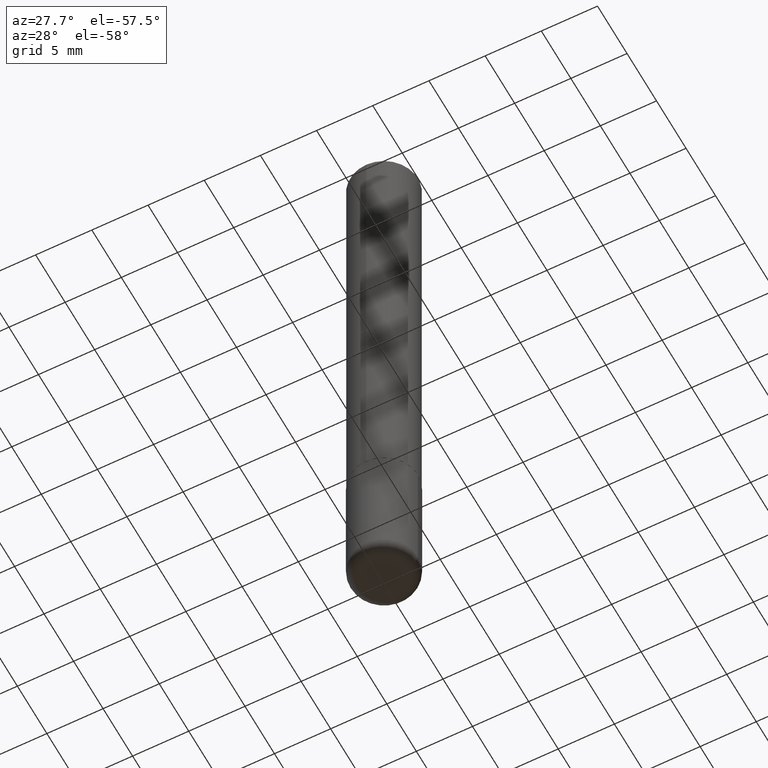
[diagram: clean part render]
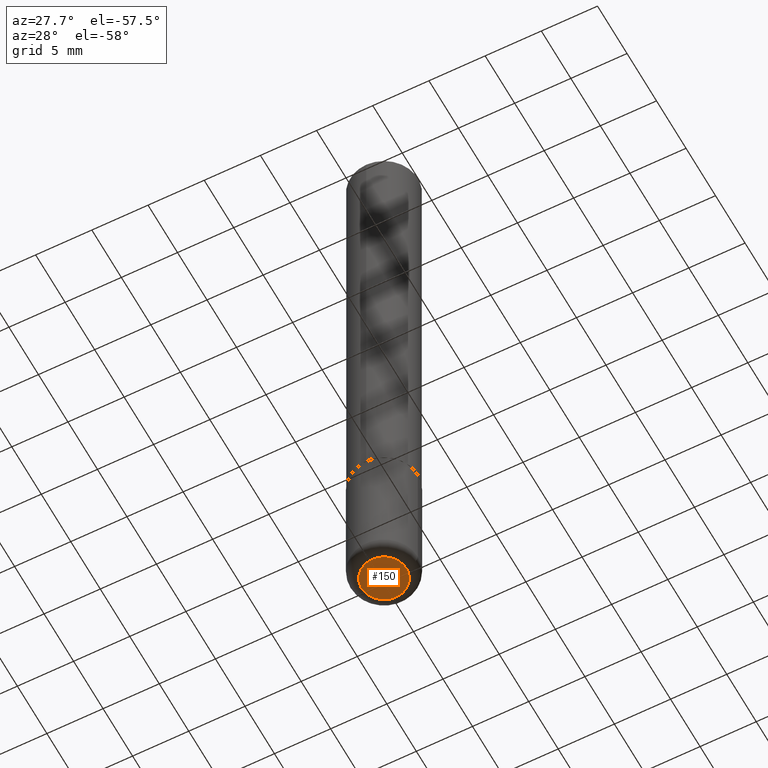
[diagram: same view with one face highlighted and labeled with its STEP entity id]
A machine part, auxiliary view. The second image highlights one B-rep face of the part: STEP entity #150.
In plain terms, the highlighted planar face has unit normal (0, -0, -1).
Its self-contained STEP definition (entity closure, byte-faithful):
#6 = DIRECTION ( 'NONE',  ( -1.000000000000000000, 6.982962677686265922E-15, -4.876176775795935793E-29 ) ) ;
#25 = CARTESIAN_POINT ( 'NONE',  ( 0.07870000000000000606, -8.384792435231810596E-15, -2.244099999999999540 ) ) ;
#26 = DIRECTION ( 'NONE',  ( 1.000000000000000000, -6.982962677686269077E-15, 0.000000000000000000 ) ) ;
#58 = CARTESIAN_POINT ( 'NONE',  ( 5.487876547960064752E-29, -7.835233272497900762E-15, -2.244099999999999540 ) ) ;
#62 = ORIENTED_EDGE ( 'NONE', *, *, #390, .F. ) ;
#97 = AXIS2_PLACEMENT_3D ( 'NONE', #179, #362, #6 ) ;
#131 = CIRCLE ( 'NONE', #348, 0.07870000000000000606 ) ;
#150 = ADVANCED_FACE ( 'NONE', ( #336 ), #337, .T. ) ;
#153 = VERTEX_POINT ( 'NONE', #178 ) ;
#175 = AXIS2_PLACEMENT_3D ( 'NONE', #380, #384, #375 ) ;
#178 = CARTESIAN_POINT ( 'NONE',  ( -0.07870000000000000606, -7.067277038134755422E-15, -2.244099999999999540 ) ) ;
#179 = CARTESIAN_POINT ( 'NONE',  ( 1.092743596228401244E-28, -4.547459069109707912E-17, -2.244099999999999540 ) ) ;
#189 = DIRECTION ( 'NONE',  ( -2.445468806185136597E-29, 3.491481338843145583E-15, 1.000000000000000000 ) ) ;
#272 = CIRCLE ( 'NONE', #175, 0.07870000000000000606 ) ;
#294 = EDGE_CURVE ( 'NONE', #153, #311, #272, .T. ) ;
#311 = VERTEX_POINT ( 'NONE', #25 ) ;
#314 = ORIENTED_EDGE ( 'NONE', *, *, #294, .F. ) ;
#336 = FACE_OUTER_BOUND ( 'NONE', #342, .T. ) ;
#337 = PLANE ( 'NONE',  #97 ) ;
#342 = EDGE_LOOP ( 'NONE', ( #62, #314 ) ) ;
#348 = AXIS2_PLACEMENT_3D ( 'NONE', #58, #189, #26 ) ;
#362 = DIRECTION ( 'NONE',  ( 2.438088387897960049E-29, -3.491481338843145188E-15, -1.000000000000000000 ) ) ;
#375 = DIRECTION ( 'NONE',  ( 1.000000000000000000, -6.982962677686269077E-15, 0.000000000000000000 ) ) ;
#380 = CARTESIAN_POINT ( 'NONE',  ( 5.487876547960064752E-29, -7.835233272497900762E-15, -2.244099999999999540 ) ) ;
#384 = DIRECTION ( 'NONE',  ( -2.445468806185136597E-29, 3.491481338843145583E-15, 1.000000000000000000 ) ) ;
#390 = EDGE_CURVE ( 'NONE', #311, #153, #131, .T. ) ;